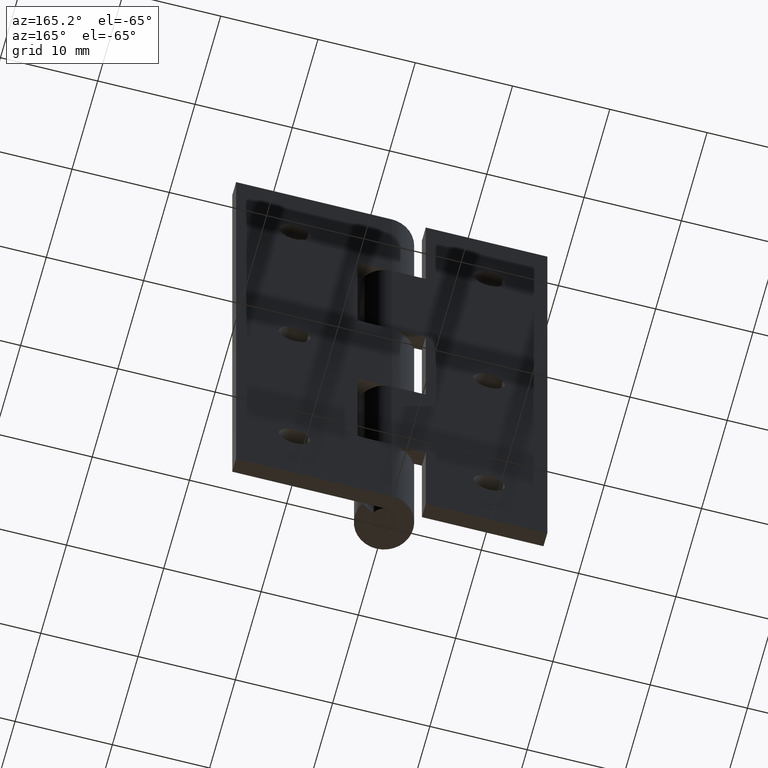
[diagram: clean part render]
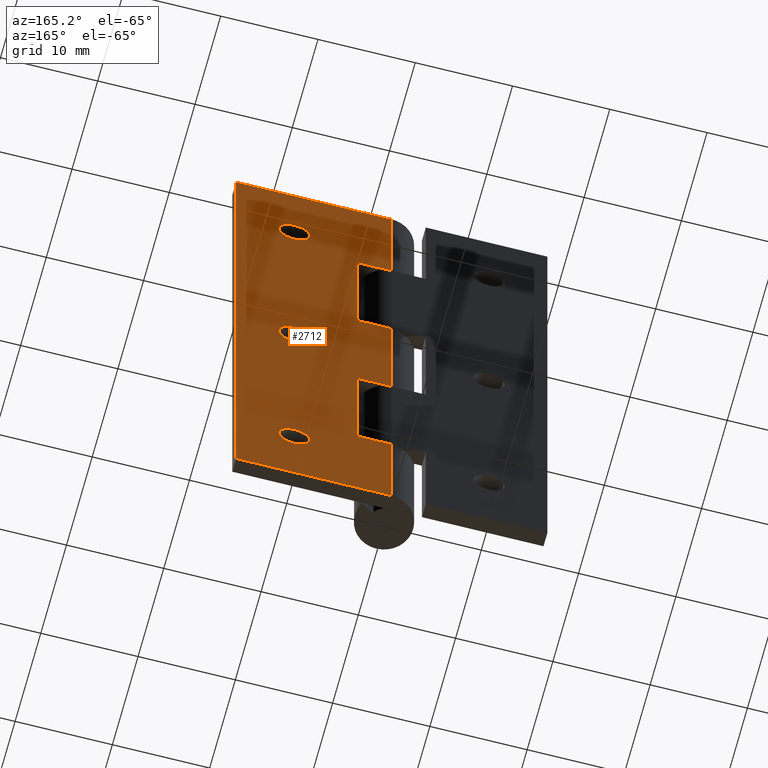
[diagram: same view with one face highlighted and labeled with its STEP entity id]
A machine part, auxiliary view. The second image highlights one B-rep face of the part: STEP entity #2712.
In plain terms, the highlighted face is a freeform B-spline surface patch.
Its self-contained STEP definition (entity closure, byte-faithful):
#1361=CARTESIAN_POINT('',(10.0,3.0,58.100000000000001));
#1362=VERTEX_POINT('',#1361);
#1363=CARTESIAN_POINT('',(8.404932266036266,3.0,56.625534553282350));
#1364=VERTEX_POINT('',#1363);
#1365=CARTESIAN_POINT('',(10.0,3.0,58.100000000000001));
#1366=CARTESIAN_POINT('',(8.520975213565986,3.000000000000000,58.099999999999994));
#1367=CARTESIAN_POINT('',(8.404932266036266,3.000000000000000,56.625534553282357));
#1375=(BOUNDED_CURVE()B_SPLINE_CURVE(2,(#1365,#1366,#1367),.UNSPECIFIED.,.F.,.U.)B_SPLINE_CURVE_WITH_KNOTS((3,3),(0.0,0.236331300607449),.UNSPECIFIED.)CURVE()GEOMETRIC_REPRESENTATION_ITEM()RATIONAL_B_SPLINE_CURVE((1.0,0.723120658634859,0.969723356118978))REPRESENTATION_ITEM(''));
#1376=EDGE_CURVE('',#1362,#1364,#1375,.T.);
#1378=CARTESIAN_POINT('',(11.595067733963729,3.0,56.374465446717650));
#1379=VERTEX_POINT('',#1378);
#1380=CARTESIAN_POINT('',(11.595067733963731,2.999999999999999,56.374465446717657));
#1381=CARTESIAN_POINT('',(11.600000000000000,3.000000000000000,56.437135828669390));
#1382=CARTESIAN_POINT('',(11.600000000000000,3.0,56.500000000000000));
#1383=CARTESIAN_POINT('',(11.600000000000001,3.0,58.099999999999994));
#1384=CARTESIAN_POINT('',(10.0,3.0,58.100000000000001));
#1392=(BOUNDED_CURVE()B_SPLINE_CURVE(2,(#1380,#1381,#1382,#1383,#1384),.UNSPECIFIED.,.F.,.U.)B_SPLINE_CURVE_WITH_KNOTS((3,2,3),(0.736331300607448,0.750000000000000,1.0),.UNSPECIFIED.)CURVE()GEOMETRIC_REPRESENTATION_ITEM()RATIONAL_B_SPLINE_CURVE((0.969723356118977,0.983986122551688,1.0,0.707106781186548,1.0))REPRESENTATION_ITEM(''));
#1393=EDGE_CURVE('',#1379,#1362,#1392,.T.);
#1460=CARTESIAN_POINT('',(10.0,3.0,54.900000000000013));
#1461=VERTEX_POINT('',#1460);
#1462=CARTESIAN_POINT('',(8.404932266036266,3.000000000000000,56.625534553282357));
#1463=CARTESIAN_POINT('',(8.400000000000000,3.000000000000000,56.562864171330610));
#1464=CARTESIAN_POINT('',(8.400000000000000,3.0,56.500000000000000));
#1465=CARTESIAN_POINT('',(8.400000000000000,3.0,54.899999999999991));
#1466=CARTESIAN_POINT('',(10.0,3.0,54.900000000000013));
#1474=(BOUNDED_CURVE()B_SPLINE_CURVE(2,(#1462,#1463,#1464,#1465,#1466),.UNSPECIFIED.,.F.,.U.)B_SPLINE_CURVE_WITH_KNOTS((3,2,3),(0.236331300607449,0.250000000000000,0.500000000000000),.UNSPECIFIED.)CURVE()GEOMETRIC_REPRESENTATION_ITEM()RATIONAL_B_SPLINE_CURVE((0.969723356118978,0.983986122551688,1.0,0.707106781186548,1.0))REPRESENTATION_ITEM(''));
#1475=EDGE_CURVE('',#1364,#1461,#1474,.T.);
#1509=CARTESIAN_POINT('',(10.0,3.0,54.900000000000013));
#1510=CARTESIAN_POINT('',(11.479024786434014,3.000000000000001,54.900000000000013));
#1511=CARTESIAN_POINT('',(11.595067733963738,3.0,56.374465446717650));
#1519=(BOUNDED_CURVE()B_SPLINE_CURVE(2,(#1509,#1510,#1511),.UNSPECIFIED.,.F.,.U.)B_SPLINE_CURVE_WITH_KNOTS((3,3),(0.500000000000000,0.736331300607449),.UNSPECIFIED.)CURVE()GEOMETRIC_REPRESENTATION_ITEM()RATIONAL_B_SPLINE_CURVE((1.0,0.723120658634859,0.969723356118978))REPRESENTATION_ITEM(''));
#1520=EDGE_CURVE('',#1461,#1379,#1519,.T.);
#1543=CARTESIAN_POINT('',(10.0,3.0,34.100000000000001));
#1544=VERTEX_POINT('',#1543);
#1545=CARTESIAN_POINT('',(8.404932266036266,3.0,32.625534553282343));
#1546=VERTEX_POINT('',#1545);
#1547=CARTESIAN_POINT('',(10.0,3.0,34.100000000000001));
#1548=CARTESIAN_POINT('',(8.520975213565986,3.000000000000000,34.099999999999994));
#1549=CARTESIAN_POINT('',(8.404932266036266,3.000000000000000,32.625534553282350));
#1557=(BOUNDED_CURVE()B_SPLINE_CURVE(2,(#1547,#1548,#1549),.UNSPECIFIED.,.F.,.U.)B_SPLINE_CURVE_WITH_KNOTS((3,3),(0.0,0.236331300607449),.UNSPECIFIED.)CURVE()GEOMETRIC_REPRESENTATION_ITEM()RATIONAL_B_SPLINE_CURVE((1.0,0.723120658634859,0.969723356118978))REPRESENTATION_ITEM(''));
#1558=EDGE_CURVE('',#1544,#1546,#1557,.T.);
#1560=CARTESIAN_POINT('',(11.595067733963729,3.0,32.374465446717650));
#1561=VERTEX_POINT('',#1560);
#1562=CARTESIAN_POINT('',(11.595067733963731,2.999999999999999,32.374465446717650));
#1563=CARTESIAN_POINT('',(11.600000000000000,3.000000000000000,32.437135828669383));
#1564=CARTESIAN_POINT('',(11.600000000000000,3.0,32.500000000000000));
#1565=CARTESIAN_POINT('',(11.600000000000001,3.0,34.099999999999994));
#1566=CARTESIAN_POINT('',(10.0,3.0,34.100000000000001));
#1574=(BOUNDED_CURVE()B_SPLINE_CURVE(2,(#1562,#1563,#1564,#1565,#1566),.UNSPECIFIED.,.F.,.U.)B_SPLINE_CURVE_WITH_KNOTS((3,2,3),(0.736331300607448,0.750000000000000,1.0),.UNSPECIFIED.)CURVE()GEOMETRIC_REPRESENTATION_ITEM()RATIONAL_B_SPLINE_CURVE((0.969723356118977,0.983986122551688,1.0,0.707106781186548,1.0))REPRESENTATION_ITEM(''));
#1575=EDGE_CURVE('',#1561,#1544,#1574,.T.);
#1642=CARTESIAN_POINT('',(10.0,3.0,30.899999999999999));
#1643=VERTEX_POINT('',#1642);
#1644=CARTESIAN_POINT('',(8.404932266036266,3.000000000000000,32.625534553282343));
#1645=CARTESIAN_POINT('',(8.400000000000000,3.0,32.562864171330602));
#1646=CARTESIAN_POINT('',(8.400000000000000,3.0,32.500000000000000));
#1647=CARTESIAN_POINT('',(8.400000000000000,3.0,30.900000000000002));
#1648=CARTESIAN_POINT('',(10.0,3.0,30.899999999999999));
#1656=(BOUNDED_CURVE()B_SPLINE_CURVE(2,(#1644,#1645,#1646,#1647,#1648),.UNSPECIFIED.,.F.,.U.)B_SPLINE_CURVE_WITH_KNOTS((3,2,3),(0.236331300607449,0.250000000000000,0.500000000000000),.UNSPECIFIED.)CURVE()GEOMETRIC_REPRESENTATION_ITEM()RATIONAL_B_SPLINE_CURVE((0.969723356118978,0.983986122551689,1.0,0.707106781186548,1.0))REPRESENTATION_ITEM(''));
#1657=EDGE_CURVE('',#1546,#1643,#1656,.T.);
#1691=CARTESIAN_POINT('',(10.0,3.0,30.899999999999999));
#1692=CARTESIAN_POINT('',(11.479024786434014,3.000000000000001,30.899999999999991));
#1693=CARTESIAN_POINT('',(11.595067733963738,3.0,32.374465446717650));
#1701=(BOUNDED_CURVE()B_SPLINE_CURVE(2,(#1691,#1692,#1693),.UNSPECIFIED.,.F.,.U.)B_SPLINE_CURVE_WITH_KNOTS((3,3),(0.500000000000000,0.736331300607449),.UNSPECIFIED.)CURVE()GEOMETRIC_REPRESENTATION_ITEM()RATIONAL_B_SPLINE_CURVE((1.0,0.723120658634859,0.969723356118978))REPRESENTATION_ITEM(''));
#1702=EDGE_CURVE('',#1643,#1561,#1701,.T.);
#1725=CARTESIAN_POINT('',(10.0,3.0,10.100000000000000));
#1726=VERTEX_POINT('',#1725);
#1727=CARTESIAN_POINT('',(8.404932266036266,3.0,8.625534553282341));
#1728=VERTEX_POINT('',#1727);
#1729=CARTESIAN_POINT('',(10.0,3.0,10.100000000000000));
#1730=CARTESIAN_POINT('',(8.520975213565983,3.000000000000001,10.100000000000001));
#1731=CARTESIAN_POINT('',(8.404932266036266,3.000000000000000,8.625534553282341));
#1739=(BOUNDED_CURVE()B_SPLINE_CURVE(2,(#1729,#1730,#1731),.UNSPECIFIED.,.F.,.U.)B_SPLINE_CURVE_WITH_KNOTS((3,3),(0.0,0.236331300607449),.UNSPECIFIED.)CURVE()GEOMETRIC_REPRESENTATION_ITEM()RATIONAL_B_SPLINE_CURVE((1.0,0.723120658634858,0.969723356118979))REPRESENTATION_ITEM(''));
#1740=EDGE_CURVE('',#1726,#1728,#1739,.T.);
#1742=CARTESIAN_POINT('',(11.595067733963729,3.0,8.374465446717661));
#1743=VERTEX_POINT('',#1742);
#1744=CARTESIAN_POINT('',(11.595067733963738,3.0,8.374465446717661));
#1745=CARTESIAN_POINT('',(11.599999999999996,3.0,8.437135828669394));
#1746=CARTESIAN_POINT('',(11.600000000000000,3.0,8.500000000000000));
#1747=CARTESIAN_POINT('',(11.600000000000001,3.0,10.100000000000001));
#1748=CARTESIAN_POINT('',(10.0,3.0,10.100000000000000));
#1756=(BOUNDED_CURVE()B_SPLINE_CURVE(2,(#1744,#1745,#1746,#1747,#1748),.UNSPECIFIED.,.F.,.U.)B_SPLINE_CURVE_WITH_KNOTS((3,2,3),(0.736331300607449,0.750000000000000,1.0),.UNSPECIFIED.)CURVE()GEOMETRIC_REPRESENTATION_ITEM()RATIONAL_B_SPLINE_CURVE((0.969723356118979,0.983986122551689,1.0,0.707106781186548,1.0))REPRESENTATION_ITEM(''));
#1757=EDGE_CURVE('',#1743,#1726,#1756,.T.);
#1824=CARTESIAN_POINT('',(10.0,3.0,6.900000000000000));
#1825=VERTEX_POINT('',#1824);
#1826=CARTESIAN_POINT('',(8.404932266036266,3.000000000000001,8.625534553282341));
#1827=CARTESIAN_POINT('',(8.400000000000002,3.000000000000001,8.562864171330608));
#1828=CARTESIAN_POINT('',(8.400000000000000,3.0,8.500000000000000));
#1829=CARTESIAN_POINT('',(8.400000000000000,3.0,6.900000000000000));
#1830=CARTESIAN_POINT('',(10.0,3.0,6.900000000000000));
#1838=(BOUNDED_CURVE()B_SPLINE_CURVE(2,(#1826,#1827,#1828,#1829,#1830),.UNSPECIFIED.,.F.,.U.)B_SPLINE_CURVE_WITH_KNOTS((3,2,3),(0.236331300607449,0.250000000000000,0.500000000000000),.UNSPECIFIED.)CURVE()GEOMETRIC_REPRESENTATION_ITEM()RATIONAL_B_SPLINE_CURVE((0.969723356118979,0.983986122551689,1.0,0.707106781186548,1.0))REPRESENTATION_ITEM(''));
#1839=EDGE_CURVE('',#1728,#1825,#1838,.T.);
#1873=CARTESIAN_POINT('',(10.0,3.0,6.900000000000000));
#1874=CARTESIAN_POINT('',(11.479024786434014,3.000000000000001,6.900000000000000));
#1875=CARTESIAN_POINT('',(11.595067733963738,3.0,8.374465446717661));
#1883=(BOUNDED_CURVE()B_SPLINE_CURVE(2,(#1873,#1874,#1875),.UNSPECIFIED.,.F.,.U.)B_SPLINE_CURVE_WITH_KNOTS((3,3),(0.500000000000000,0.736331300607449),.UNSPECIFIED.)CURVE()GEOMETRIC_REPRESENTATION_ITEM()RATIONAL_B_SPLINE_CURVE((1.0,0.723120658634859,0.969723356118978))REPRESENTATION_ITEM(''));
#1884=EDGE_CURVE('',#1825,#1743,#1883,.T.);
#1903=CARTESIAN_POINT('',(3.499999999999901,3.0,25.699997000000000));
#1904=VERTEX_POINT('',#1903);
#1910=CARTESIAN_POINT('',(3.499999999999901,3.0,12.100006000000199));
#1911=VERTEX_POINT('',#1910);
#1912=CARTESIAN_POINT('',(3.499999999999901,3.0,12.100006000000199));
#1913=CARTESIAN_POINT('',(3.499999999999901,3.0,25.699997000000000));
#1914=QUASI_UNIFORM_CURVE('',1,(#1912,#1913),.UNSPECIFIED.,.F.,.U.);
#1915=EDGE_CURVE('',#1911,#1904,#1914,.T.);
#1938=CARTESIAN_POINT('',(0.0,3.0,12.100006000000160));
#1939=VERTEX_POINT('',#1938);
#1940=CARTESIAN_POINT('',(0.0,3.0,12.100006000000160));
#1941=CARTESIAN_POINT('',(3.499999999999901,3.0,12.100006000000199));
#1942=QUASI_UNIFORM_CURVE('',1,(#1940,#1941),.UNSPECIFIED.,.F.,.U.);
#1943=EDGE_CURVE('',#1939,#1911,#1942,.T.);
#2035=CARTESIAN_POINT('',(0.0,3.0,25.699997000000000));
#2036=VERTEX_POINT('',#2035);
#2056=CARTESIAN_POINT('',(3.499999999999901,3.0,25.699997000000000));
#2057=CARTESIAN_POINT('',(0.0,3.0,25.699997000000000));
#2058=QUASI_UNIFORM_CURVE('',1,(#2056,#2057),.UNSPECIFIED.,.F.,.U.);
#2059=EDGE_CURVE('',#1904,#2036,#2058,.T.);
#2079=CARTESIAN_POINT('',(3.499999999999901,3.0,52.899993999999801));
#2080=VERTEX_POINT('',#2079);
#2086=CARTESIAN_POINT('',(3.499999999999901,3.0,39.300002999999997));
#2087=VERTEX_POINT('',#2086);
#2088=CARTESIAN_POINT('',(3.499999999999901,3.0,52.899993999999801));
#2089=CARTESIAN_POINT('',(3.499999999999901,3.0,39.300002999999997));
#2090=QUASI_UNIFORM_CURVE('',1,(#2088,#2089),.UNSPECIFIED.,.F.,.U.);
#2091=EDGE_CURVE('',#2080,#2087,#2090,.T.);
#2141=CARTESIAN_POINT('',(0.0,3.0,52.899993999999801));
#2142=VERTEX_POINT('',#2141);
#2162=CARTESIAN_POINT('',(0.0,3.0,52.899993999999801));
#2163=CARTESIAN_POINT('',(3.499999999999901,3.0,52.899993999999801));
#2164=QUASI_UNIFORM_CURVE('',1,(#2162,#2163),.UNSPECIFIED.,.F.,.U.);
#2165=EDGE_CURVE('',#2142,#2080,#2164,.T.);
#2184=CARTESIAN_POINT('',(0.0,3.0,39.300002999999997));
#2185=VERTEX_POINT('',#2184);
#2186=CARTESIAN_POINT('',(3.499999999999901,3.0,39.300002999999997));
#2187=CARTESIAN_POINT('',(0.0,3.0,39.300002999999997));
#2188=QUASI_UNIFORM_CURVE('',1,(#2186,#2187),.UNSPECIFIED.,.F.,.U.);
#2189=EDGE_CURVE('',#2087,#2185,#2188,.T.);
#2276=CARTESIAN_POINT('',(16.0,3.0,65.0));
#2277=VERTEX_POINT('',#2276);
#2283=CARTESIAN_POINT('',(0.0,3.0,65.0));
#2284=VERTEX_POINT('',#2283);
#2285=CARTESIAN_POINT('',(16.0,3.0,65.0));
#2286=CARTESIAN_POINT('',(0.0,3.0,65.0));
#2287=QUASI_UNIFORM_CURVE('',1,(#2285,#2286),.UNSPECIFIED.,.F.,.U.);
#2288=EDGE_CURVE('',#2277,#2284,#2287,.T.);
#2354=CARTESIAN_POINT('',(0.0,3.0,0.0));
#2355=VERTEX_POINT('',#2354);
#2375=CARTESIAN_POINT('',(16.0,3.0,0.0));
#2376=VERTEX_POINT('',#2375);
#2377=CARTESIAN_POINT('',(16.0,3.0,0.0));
#2378=CARTESIAN_POINT('',(0.0,3.0,0.0));
#2379=QUASI_UNIFORM_CURVE('',1,(#2377,#2378),.UNSPECIFIED.,.F.,.U.);
#2380=EDGE_CURVE('',#2376,#2355,#2379,.T.);
#2439=CARTESIAN_POINT('',(0.0,3.0,25.699997000000000));
#2440=CARTESIAN_POINT('',(0.0,3.0,39.300002999999997));
#2441=QUASI_UNIFORM_CURVE('',1,(#2439,#2440),.UNSPECIFIED.,.F.,.U.);
#2442=EDGE_CURVE('',#2036,#2185,#2441,.T.);
#2466=CARTESIAN_POINT('',(16.0,3.0,0.0));
#2467=CARTESIAN_POINT('',(16.0,3.0,65.0));
#2468=QUASI_UNIFORM_CURVE('',1,(#2466,#2467),.UNSPECIFIED.,.F.,.U.);
#2469=EDGE_CURVE('',#2376,#2277,#2468,.T.);
#2549=CARTESIAN_POINT('',(0.0,3.0,52.899993999999801));
#2550=CARTESIAN_POINT('',(0.0,3.0,65.0));
#2551=QUASI_UNIFORM_CURVE('',1,(#2549,#2550),.UNSPECIFIED.,.F.,.U.);
#2552=EDGE_CURVE('',#2142,#2284,#2551,.T.);
#2617=CARTESIAN_POINT('',(0.0,3.0,0.0));
#2618=CARTESIAN_POINT('',(0.0,3.0,12.100006000000160));
#2619=QUASI_UNIFORM_CURVE('',1,(#2617,#2618),.UNSPECIFIED.,.F.,.U.);
#2620=EDGE_CURVE('',#2355,#1939,#2619,.T.);
#2675=CARTESIAN_POINT('',(-0.799199968988895,3.0,-3.246749874017389));
#2676=CARTESIAN_POINT('',(-0.799199968988895,3.0,68.246751617453242));
#2677=CARTESIAN_POINT('',(16.799200398142339,3.0,-3.246749874017389));
#2678=CARTESIAN_POINT('',(16.799200398142339,3.0,68.246751617453242));
#2679=B_SPLINE_SURFACE_WITH_KNOTS('',1,1,((#2675,#2677),(#2676,#2678)),.UNSPECIFIED.,.F.,.F.,.U.,(2,2),(2,2),(0.0,71.493501491470624),(0.0,17.598400367131230),.UNSPECIFIED.);
#2680=ORIENTED_EDGE('',*,*,#2059,.T.);
#2681=ORIENTED_EDGE('',*,*,#2442,.T.);
#2682=ORIENTED_EDGE('',*,*,#2189,.F.);
#2683=ORIENTED_EDGE('',*,*,#2091,.F.);
#2684=ORIENTED_EDGE('',*,*,#2165,.F.);
#2685=ORIENTED_EDGE('',*,*,#2552,.T.);
#2686=ORIENTED_EDGE('',*,*,#2288,.F.);
#2687=ORIENTED_EDGE('',*,*,#2469,.F.);
#2688=ORIENTED_EDGE('',*,*,#2380,.T.);
#2689=ORIENTED_EDGE('',*,*,#2620,.T.);
#2690=ORIENTED_EDGE('',*,*,#1943,.T.);
#2691=ORIENTED_EDGE('',*,*,#1915,.T.);
#2692=EDGE_LOOP('',(#2680,#2681,#2682,#2683,#2684,#2685,#2686,#2687,#2688,#2689,#2690,#2691));
#2693=FACE_OUTER_BOUND('',#2692,.T.);
#2694=ORIENTED_EDGE('',*,*,#1884,.T.);
#2695=ORIENTED_EDGE('',*,*,#1757,.T.);
#2696=ORIENTED_EDGE('',*,*,#1740,.T.);
#2697=ORIENTED_EDGE('',*,*,#1839,.T.);
#2698=EDGE_LOOP('',(#2694,#2695,#2696,#2697));
#2699=FACE_BOUND('',#2698,.T.);
#2700=ORIENTED_EDGE('',*,*,#1702,.T.);
#2701=ORIENTED_EDGE('',*,*,#1575,.T.);
#2702=ORIENTED_EDGE('',*,*,#1558,.T.);
#2703=ORIENTED_EDGE('',*,*,#1657,.T.);
#2704=EDGE_LOOP('',(#2700,#2701,#2702,#2703));
#2705=FACE_BOUND('',#2704,.T.);
#2706=ORIENTED_EDGE('',*,*,#1520,.T.);
#2707=ORIENTED_EDGE('',*,*,#1393,.T.);
#2708=ORIENTED_EDGE('',*,*,#1376,.T.);
#2709=ORIENTED_EDGE('',*,*,#1475,.T.);
#2710=EDGE_LOOP('',(#2706,#2707,#2708,#2709));
#2711=FACE_BOUND('',#2710,.T.);
#2712=ADVANCED_FACE('',(#2693,#2699,#2705,#2711),#2679,.T.);